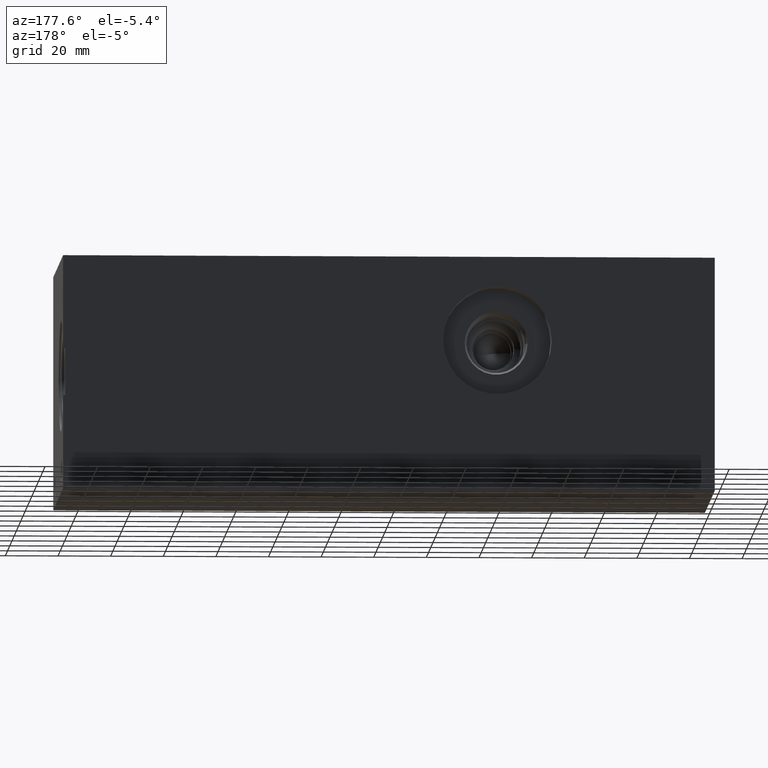
[diagram: clean part render]
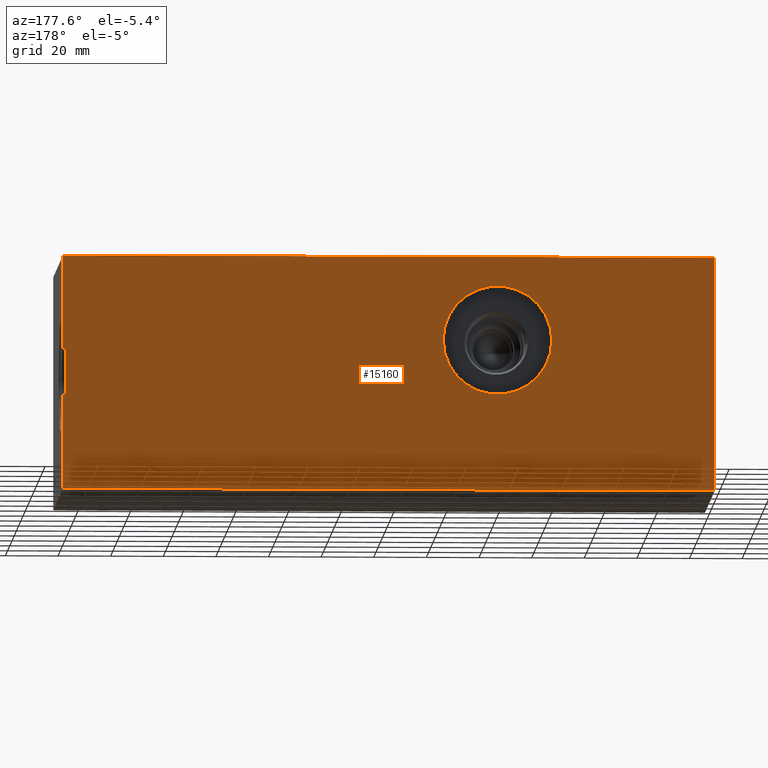
[diagram: same view with one face highlighted and labeled with its STEP entity id]
A machine part, auxiliary view. The second image highlights one B-rep face of the part: STEP entity #15160.
In plain terms, the highlighted planar face has unit normal (0, 1, 0).
Its self-contained STEP definition (entity closure, byte-faithful):
#214=CIRCLE('',#15547,20.6375);
#215=CIRCLE('',#15548,20.6375);
#679=FACE_BOUND('',#3013,.T.);
#2128=FACE_OUTER_BOUND('',#3012,.T.);
#3012=EDGE_LOOP('',(#13377,#13378,#13379,#13380,#13381,#13382,#13383,#13384));
#3013=EDGE_LOOP('',(#13385,#13386));
#3100=LINE('',#19603,#4399);
#4172=LINE('',#25432,#5471);
#4173=LINE('',#25436,#5472);
#4174=LINE('',#25439,#5473);
#4178=LINE('',#25460,#5477);
#4181=LINE('',#25464,#5480);
#4338=LINE('',#26515,#5637);
#4339=LINE('',#26516,#5638);
#4399=VECTOR('',#16232,10.);
#5471=VECTOR('',#18136,10.);
#5472=VECTOR('',#18139,10.);
#5473=VECTOR('',#18144,10.);
#5477=VECTOR('',#18168,10.);
#5480=VECTOR('',#18171,10.);
#5637=VECTOR('',#19336,10.);
#5638=VECTOR('',#19337,10.);
#5687=VERTEX_POINT('',#19596);
#5690=VERTEX_POINT('',#19601);
#6689=VERTEX_POINT('',#25300);
#6690=VERTEX_POINT('',#25301);
#6734=VERTEX_POINT('',#25430);
#6735=VERTEX_POINT('',#25431);
#6736=VERTEX_POINT('',#25433);
#6737=VERTEX_POINT('',#25435);
#6744=VERTEX_POINT('',#25459);
#6745=VERTEX_POINT('',#25462);
#7173=EDGE_CURVE('',#5687,#5690,#3100,.T.);
#8660=EDGE_CURVE('',#6689,#6690,#214,.T.);
#8661=EDGE_CURVE('',#6690,#6689,#215,.T.);
#8722=EDGE_CURVE('',#6734,#6735,#4172,.T.);
#8724=EDGE_CURVE('',#6737,#6736,#4173,.T.);
#8726=EDGE_CURVE('',#6736,#6734,#4174,.T.);
#8736=EDGE_CURVE('',#6737,#6744,#4178,.T.);
#8739=EDGE_CURVE('',#6745,#6735,#4181,.T.);
#9212=EDGE_CURVE('',#6745,#5687,#4338,.T.);
#9213=EDGE_CURVE('',#6744,#5690,#4339,.T.);
#13377=ORIENTED_EDGE('',*,*,#8722,.T.);
#13378=ORIENTED_EDGE('',*,*,#8739,.F.);
#13379=ORIENTED_EDGE('',*,*,#9212,.T.);
#13380=ORIENTED_EDGE('',*,*,#7173,.T.);
#13381=ORIENTED_EDGE('',*,*,#9213,.F.);
#13382=ORIENTED_EDGE('',*,*,#8736,.F.);
#13383=ORIENTED_EDGE('',*,*,#8724,.T.);
#13384=ORIENTED_EDGE('',*,*,#8726,.T.);
#13385=ORIENTED_EDGE('',*,*,#8660,.T.);
#13386=ORIENTED_EDGE('',*,*,#8661,.T.);
#13833=PLANE('',#16129);
#15160=ADVANCED_FACE('',(#2128,#679),#13833,.T.);
#15547=AXIS2_PLACEMENT_3D('',#25302,#17985,#17986);
#15548=AXIS2_PLACEMENT_3D('',#25303,#17987,#17988);
#16129=AXIS2_PLACEMENT_3D('',#26514,#19334,#19335);
#16232=DIRECTION('',(0.,0.,1.));
#17985=DIRECTION('center_axis',(0.,-1.,0.));
#17986=DIRECTION('ref_axis',(1.,0.,0.));
#17987=DIRECTION('center_axis',(0.,-1.,0.));
#17988=DIRECTION('ref_axis',(1.,0.,0.));
#18136=DIRECTION('',(1.,0.,0.));
#18139=DIRECTION('',(-1.,0.,0.));
#18144=DIRECTION('',(0.,0.,-1.));
#18168=DIRECTION('',(0.,0.,1.));
#18171=DIRECTION('',(0.,0.,1.));
#19334=DIRECTION('center_axis',(0.,1.,0.));
#19335=DIRECTION('ref_axis',(-1.,0.,0.));
#19336=DIRECTION('',(-1.,0.,0.));
#19337=DIRECTION('',(-1.,0.,0.));
#19596=CARTESIAN_POINT('',(0.,88.9,0.));
#19601=CARTESIAN_POINT('',(0.,88.9,88.9));
#19603=CARTESIAN_POINT('',(0.,88.9,0.));
#25300=CARTESIAN_POINT('',(103.1875,88.9,57.15));
#25301=CARTESIAN_POINT('',(61.9125,88.9,57.15));
#25302=CARTESIAN_POINT('Origin',(82.55,88.9,57.15));
#25303=CARTESIAN_POINT('Origin',(82.55,88.9,57.15));
#25430=CARTESIAN_POINT('',(246.8626,88.9,35.5688490469985));
#25431=CARTESIAN_POINT('',(247.65,88.9,35.5688490469985));
#25432=CARTESIAN_POINT('',(247.2563,88.9,35.5688490469985));
#25433=CARTESIAN_POINT('',(246.8626,88.9,53.3311509530015));
#25435=CARTESIAN_POINT('',(247.65,88.9,53.3311509530015));
#25436=CARTESIAN_POINT('',(247.2563,88.9,53.3311509530015));
#25439=CARTESIAN_POINT('',(246.8626,88.9,14.92885));
#25459=CARTESIAN_POINT('',(247.65,88.9,88.9));
#25460=CARTESIAN_POINT('',(247.65,88.9,0.));
#25462=CARTESIAN_POINT('',(247.65,88.9,0.));
#25464=CARTESIAN_POINT('',(247.65,88.9,0.));
#26514=CARTESIAN_POINT('Origin',(247.65,88.9,0.));
#26515=CARTESIAN_POINT('',(247.65,88.9,0.));
#26516=CARTESIAN_POINT('',(247.65,88.9,88.9));